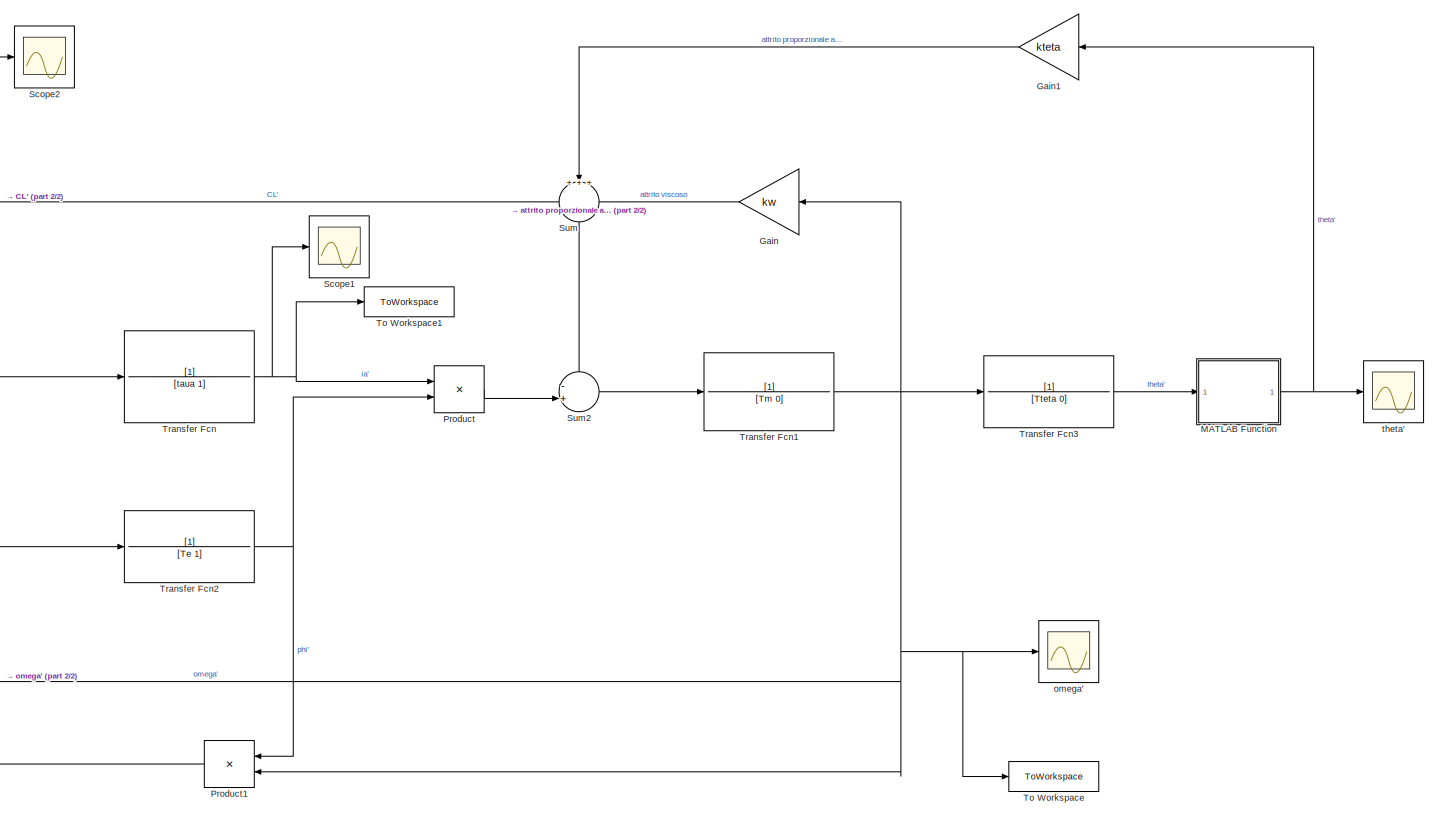
[diagram: root canvas - part 1/2, most of the canvas]
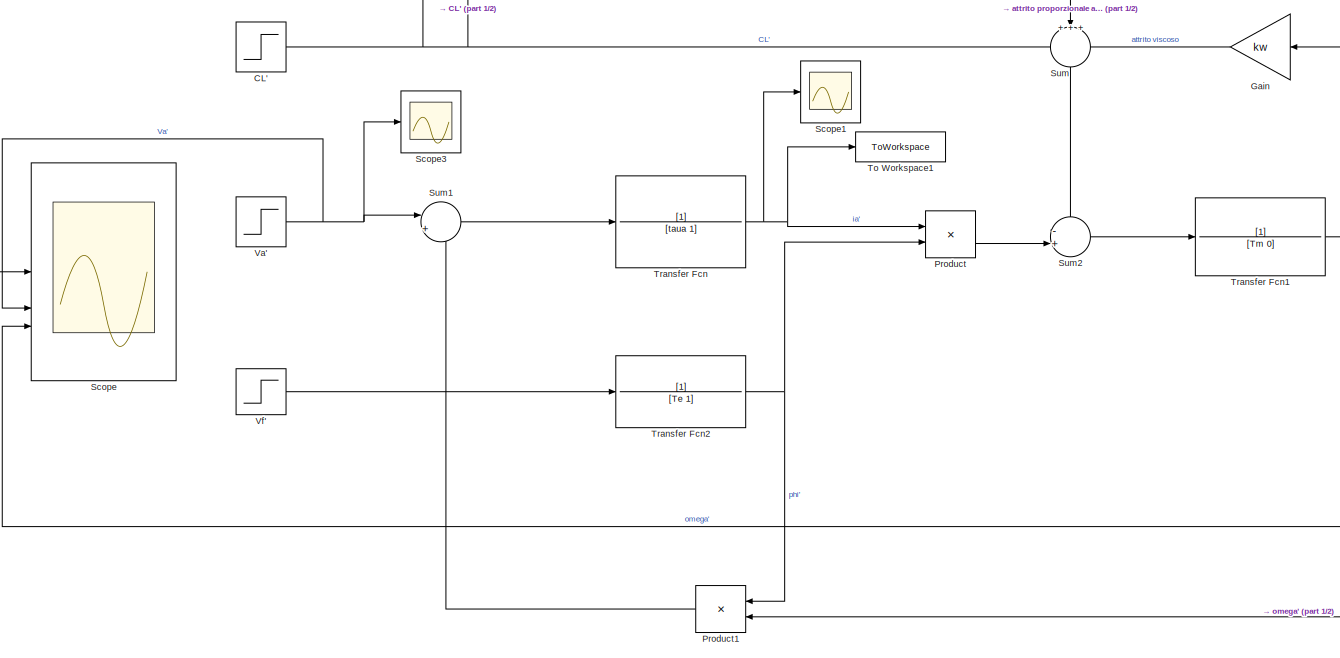
[diagram: root canvas - part 2/2, center side, full height]
MODEL slx_3769c390497e
KIND model
CONFIG AbsTol = auto
CONFIG EnableMultiTasking = off
CONFIG FixedStep = auto
CONFIG MaxStep = auto
CONFIG MinStep = auto
CONFIG RelTol = 1e-3
CONFIG SampleTimeConstraint = Unconstrained
CONFIG SolverName = VariableStepAuto
CONFIG StartTime = 0.0
CONFIG StopTime = 10.0
BLOCK [Step] CL'
  After = CLi
  SampleTime = 0
  Time = 3
BLOCK [Gain] Gain
  Gain = kw
BLOCK [Gain] Gain1
  Gain = kteta
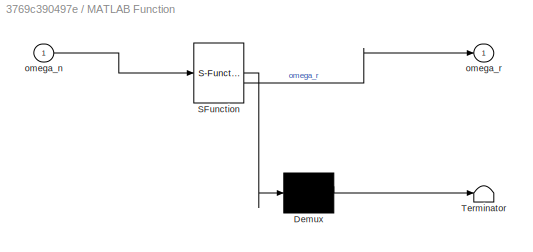
BLOCK [SubSystem] MATLAB Function
  ErrorFcn = Stateflow.Translate.translate
  PermitHierarchicalResolution = ExplicitOnly
  SFBlockType = MATLAB Function
  TreatAsAtomicUnit = on
BLOCK [Demux] MATLAB Function/ Demux 
  Outputs = 1
BLOCK [S-Function] MATLAB Function/ SFunction 
  EnableBusSupport = on
  FunctionName = sf_sfun
  PortCounts = [1 2]
  SFcnIsStateOwnerBlock = off
  SFunctionDeploymentMode = off
  Tag = Stateflow S-Function 2
BLOCK [Terminator] MATLAB Function/ Terminator 
BLOCK [Inport] MATLAB Function/omega_n
BLOCK [Outport] MATLAB Function/omega_r
BLOCK [Product] Product
BLOCK [Product] Product1
BLOCK [Scope] Scope
  Floating = off
  NumInputPorts = 3
  ScopeSpecificationString = Simulink.scopes.TimeScopeBlockCfg('CurrentConfiguration', extmgr.ConfigurationSet(extmgr.Configuration('Core','General UI',true),extmgr.Configuration('Core','Source UI',true),extmgr.Configuration('Sources','WiredSimulink',true,'DataLoggingVariableName','ScopeData1'),extmgr.Configuration('Visuals','Time Domain',true,'SerializedDisplays',{struct('MinYLimReal','-0.025','MaxYLimReal','0.225','YLabelRe...<+3101ch>
BLOCK [Scope] Scope1
  Floating = off
  NumInputPorts = 1
  ScopeSpecificationString = Simulink.scopes.TimeScopeBlockCfg('CurrentConfiguration', extmgr.ConfigurationSet(extmgr.Configuration('Core','General UI',true),extmgr.Configuration('Core','Source UI',true),extmgr.Configuration('Sources','WiredSimulink',true,'DataLoggingVariableName','ScopeData1'),extmgr.Configuration('Visuals','Time Domain',true,'SerializedDisplays',{struct('MinYLimReal','-0.25205','MaxYLimReal','0.5','YLabelRe...<+1420ch>
BLOCK [Scope] Scope2
  Floating = off
  NumInputPorts = 1
  ScopeSpecificationString = Simulink.scopes.TimeScopeBlockCfg('CurrentConfiguration', extmgr.ConfigurationSet(extmgr.Configuration('Core','General UI',true),extmgr.Configuration('Core','Source UI',true),extmgr.Configuration('Sources','WiredSimulink',true,'DataLoggingVariableName','ScopeData1'),extmgr.Configuration('Visuals','Time Domain',true,'SerializedDisplays',{struct('MinYLimReal','-0.25205','MaxYLimReal','0.37807','YLab...<+1411ch>
BLOCK [Scope] Scope3
  Floating = off
  NumInputPorts = 1
  ScopeSpecificationString = Simulink.scopes.TimeScopeBlockCfg('CurrentConfiguration', extmgr.ConfigurationSet(extmgr.Configuration('Core','General UI',true),extmgr.Configuration('Core','Source UI',true),extmgr.Configuration('Sources','WiredSimulink',true,'DataLoggingVariableName','ScopeData2'),extmgr.Configuration('Visuals','Time Domain',true,'SerializedDisplays',{struct('MinYLimReal','-0.25205','MaxYLimReal','0.5','YLabelRe...<+1420ch>
BLOCK [Sum] Sum
  Inputs = +++
  NameLocation = left
BLOCK [Sum] Sum1
  Inputs = |+-
BLOCK [Sum] Sum2
  Inputs = -+|
BLOCK [ToWorkspace] To Workspace
  FixptAsFi = on
  MaxDataPoints = inf
  SampleTime = -1
  SaveFormat = Structure With Time
  VariableName = omega_out
BLOCK [ToWorkspace] To Workspace1
  FixptAsFi = on
  MaxDataPoints = inf
  SampleTime = -1
  SaveFormat = Structure With Time
  VariableName = ia
BLOCK [TransferFcn] Transfer Fcn
  Denominator = [taua 1]
BLOCK [TransferFcn] Transfer Fcn1
  Denominator = [Tm 0]
BLOCK [TransferFcn] Transfer Fcn2
  Denominator = [Te 1]
BLOCK [TransferFcn] Transfer Fcn3
  Denominator = [Tteta 0]
BLOCK [Step] Va'
  After = Vaprime
  SampleTime = 0
BLOCK [Step] Vf'
  After = Vfprime
  SampleTime = 0
  Time = 0
BLOCK [Scope] omega'
  Floating = off
  NumInputPorts = 1
  ScopeSpecificationString = Simulink.scopes.TimeScopeBlockCfg('CurrentConfiguration', extmgr.ConfigurationSet(extmgr.Configuration('Core','General UI',true),extmgr.Configuration('Core','Source UI',true),extmgr.Configuration('Sources','WiredSimulink',true),extmgr.Configuration('Visuals','Time Domain',true,'SerializedDisplays',{struct('MinYLimReal','-0.06123','MaxYLimReal','0.55111','YLabelReal','','MinYLimMag','0.00000','MaxY...<+1375ch>
BLOCK [Scope] theta'
  Floating = off
  NumInputPorts = 1
  ScopeSpecificationString = Simulink.scopes.TimeScopeBlockCfg('CurrentConfiguration', extmgr.ConfigurationSet(extmgr.Configuration('Core','General UI',true),extmgr.Configuration('Core','Source UI',true),extmgr.Configuration('Sources','WiredSimulink',true,'DataLoggingVariableName','ScopeData1'),extmgr.Configuration('Visuals','Time Domain',true,'SerializedDisplays',{struct('MinYLimReal','-7.06006','MaxYLimReal','1.39632','YLab...<+1738ch>
NET CL':1 -> Scope2:1, Scope:1, Sum:1
LINE Gain1:1 -> Sum:2
LINE Gain:1 -> Sum:3
NET MATLAB Function:1 -> Gain1:1, theta':1
LINE Product1:1 -> Sum1:2
LINE Product:1 -> Sum2:2
LINE Sum1:1 -> Transfer Fcn:1
LINE Sum2:1 -> Transfer Fcn1:1
LINE Sum:1 -> Sum2:1
NET Transfer Fcn1:1 -> Gain:1, Product1:2, Scope:3, To Workspace:1, Transfer Fcn3:1, omega':1
NET Transfer Fcn2:1 -> Product1:1, Product:2
LINE Transfer Fcn3:1 -> MATLAB Function:1
NET Transfer Fcn:1 -> Product:1, Scope1:1, To Workspace1:1
NET Va':1 -> Scope3:1, Scope:2, Sum1:1
LINE Vf':1 -> Transfer Fcn2:1
note: NET lines group one-source signal fan-out (src -> all destinations, sorted); 1:1 wires keep LINE
CHART MATLAB Function states=1 transitions=1
  STATE_LABEL 'eML_blk_kernel()'
  STATE_LABEL 'SCRIPT:\nfunction omega_r = fcn(omega_n)\nomega_r = rem(omega_n,2*pi);\nend\n'
CHART  states=0 transitions=0
